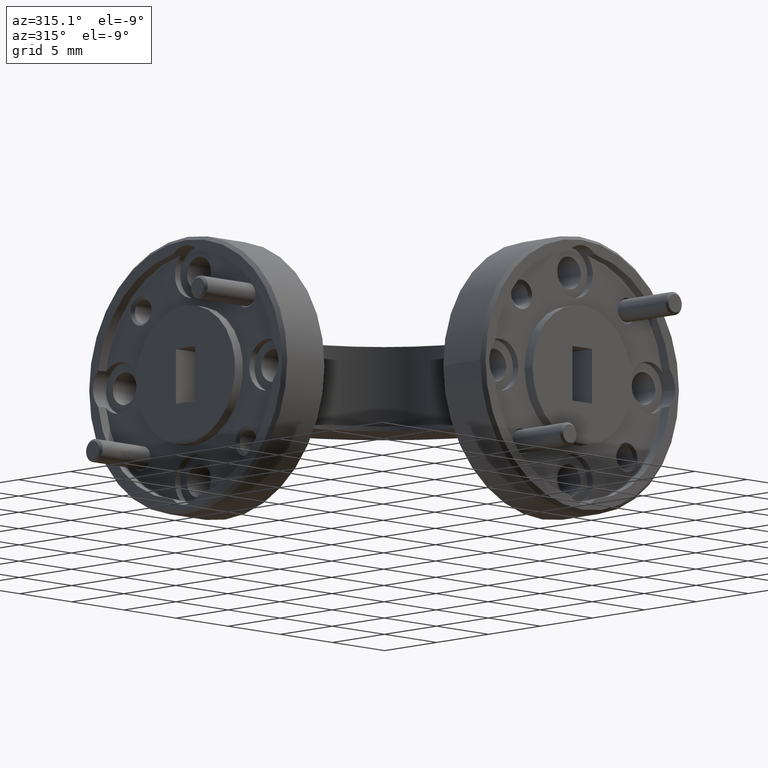
[diagram: clean part render]
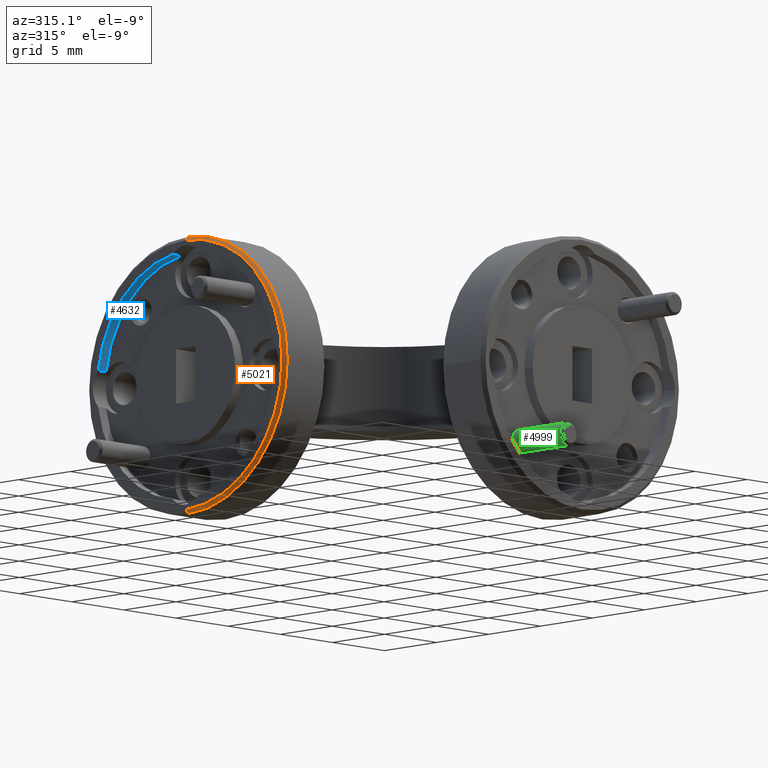
[diagram: same view with three faces highlighted in distinct colors, each labeled with its STEP entity id]
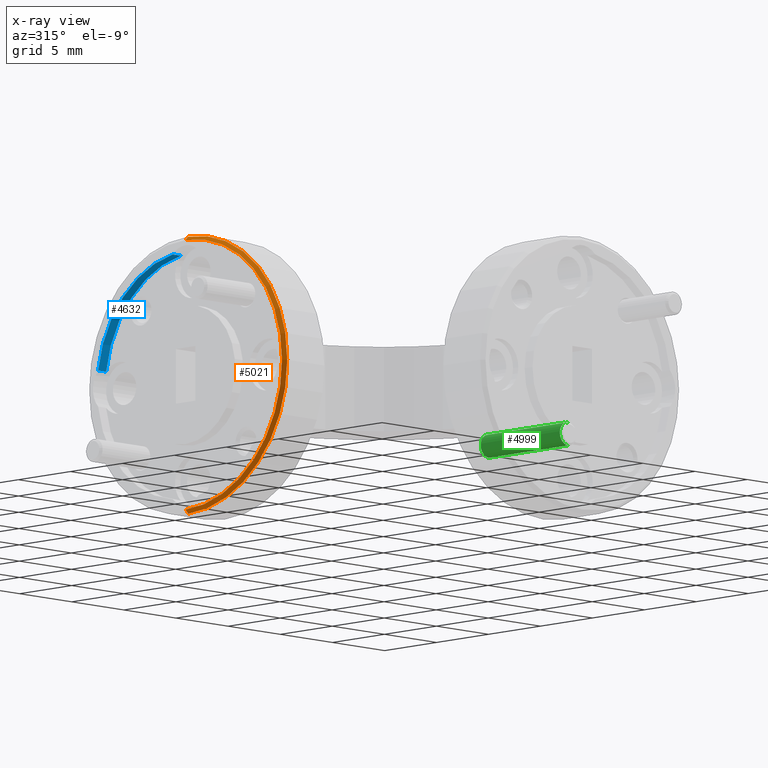
[diagram: x-ray of the same camera — body ghosted, the three highlighted faces saturated]
A machine part, auxiliary view with three faces highlighted in distinct colors.
The next image is the same camera in x-ray (body ghosted, the three faces saturated) — at least one of them is partly hidden behind the body in this view.
Their STEP definitions:

[orange] entity #5021 — the highlighted conical surface has half-angle 45 deg.
#23 = CARTESIAN_POINT ( 'NONE',  ( -2.099202687138052248, 0.6170554953585049018, 0.5190634001413547693 ) ) ;
#52 = CIRCLE ( 'NONE', #6603, 0.3749999999999999445 ) ;
#118 = VERTEX_POINT ( 'NONE', #4708 ) ;
#122 = ORIENTED_EDGE ( 'NONE', *, *, #4592, .F. ) ;
#185 = CARTESIAN_POINT ( 'NONE',  ( -2.089202687138052461, 0.6170554953585049018, 0.1440634001413546861 ) ) ;
#360 = CARTESIAN_POINT ( 'NONE',  ( -2.099202687138052248, 0.6170554953585049018, 0.5190634001413547693 ) ) ;
#460 = EDGE_CURVE ( 'NONE', #4815, #6253, #52, .T. ) ;
#918 = EDGE_CURVE ( 'NONE', #118, #1488, #3186, .T. ) ;
#989 = CONICAL_SURFACE ( 'NONE', #6067, 0.3650000000000003242, 0.7853981633974346233 ) ;
#1004 = AXIS2_PLACEMENT_3D ( 'NONE', #360, #5210, #6403 ) ;
#1378 = LINE ( 'NONE', #2137, #3335 ) ;
#1408 = CARTESIAN_POINT ( 'NONE',  ( -2.099202687138052248, 0.6170554953585049018, 0.1540634001413543896 ) ) ;
#1488 = VERTEX_POINT ( 'NONE', #4534 ) ;
#1864 = ORIENTED_EDGE ( 'NONE', *, *, #4576, .T. ) ;
#2137 = CARTESIAN_POINT ( 'NONE',  ( -2.099202687138052248, 0.6170554953585049018, 0.8840634001413550935 ) ) ;
#2705 = VECTOR ( 'NONE', #7437, 39.37007874015748854 ) ;
#2936 = DIRECTION ( 'NONE',  ( 0.000000000000000000, 0.000000000000000000, -1.000000000000000000 ) ) ;
#3186 = CIRCLE ( 'NONE', #1004, 0.3650000000000003242 ) ;
#3335 = VECTOR ( 'NONE', #3813, 39.37007874015748854 ) ;
#3813 = DIRECTION ( 'NONE',  ( 0.7071067811865571207, 8.659560562354814529E-17, 0.7071067811865378028 ) ) ;
#4298 = DIRECTION ( 'NONE',  ( 1.000000000000000000, 0.000000000000000000, 0.000000000000000000 ) ) ;
#4490 = LINE ( 'NONE', #1408, #2705 ) ;
#4534 = CARTESIAN_POINT ( 'NONE',  ( -2.099202687138052248, 0.6170554953585049018, 0.8840634001413550935 ) ) ;
#4543 = EDGE_LOOP ( 'NONE', ( #122, #5577, #1864, #6618 ) ) ;
#4576 = EDGE_CURVE ( 'NONE', #118, #6253, #4490, .T. ) ;
#4592 = EDGE_CURVE ( 'NONE', #1488, #4815, #1378, .T. ) ;
#4708 = CARTESIAN_POINT ( 'NONE',  ( -2.099202687138052248, 0.6170554953585049018, 0.1540634001413543896 ) ) ;
#4815 = VERTEX_POINT ( 'NONE', #5511 ) ;
#5021 = ADVANCED_FACE ( 'NONE', ( #7730 ), #989, .T. ) ;
#5210 = DIRECTION ( 'NONE',  ( -1.000000000000000000, 0.000000000000000000, 0.000000000000000000 ) ) ;
#5476 = DIRECTION ( 'NONE',  ( 0.000000000000000000, 0.000000000000000000, 1.000000000000000000 ) ) ;
#5511 = CARTESIAN_POINT ( 'NONE',  ( -2.089202687138052461, 0.6170554953585049018, 0.8940634001413546583 ) ) ;
#5577 = ORIENTED_EDGE ( 'NONE', *, *, #918, .F. ) ;
#6060 = CARTESIAN_POINT ( 'NONE',  ( -2.089202687138052461, 0.6170554953585049018, 0.5190634001413547693 ) ) ;
#6067 = AXIS2_PLACEMENT_3D ( 'NONE', #23, #7165, #2936 ) ;
#6253 = VERTEX_POINT ( 'NONE', #185 ) ;
#6403 = DIRECTION ( 'NONE',  ( 0.000000000000000000, 0.000000000000000000, 1.000000000000000000 ) ) ;
#6603 = AXIS2_PLACEMENT_3D ( 'NONE', #6060, #4298, #5476 ) ;
#6618 = ORIENTED_EDGE ( 'NONE', *, *, #460, .F. ) ;
#7165 = DIRECTION ( 'NONE',  ( 1.000000000000000000, 0.000000000000000000, 0.000000000000000000 ) ) ;
#7437 = DIRECTION ( 'NONE',  ( 0.7071067811865571207, 0.000000000000000000, -0.7071067811865378028 ) ) ;
#7730 = FACE_OUTER_BOUND ( 'NONE', #4543, .T. ) ;

[blue] entity #4632 — the highlighted cylindrical surface (partial cylindrical patch) has radius 8.509 mm, axis along (1, -0, -0).
#10 = EDGE_LOOP ( 'NONE', ( #1213, #853, #1209, #4876 ) ) ;
#25 = EDGE_CURVE ( 'NONE', #6326, #3569, #4470, .T. ) ;
#516 = FACE_OUTER_BOUND ( 'NONE', #10, .T. ) ;
#560 = VECTOR ( 'NONE', #7526, 39.37007874015748143 ) ;
#648 = CARTESIAN_POINT ( 'NONE',  ( -2.069202687138052443, 0.6170554953585049018, 0.5190634001413547693 ) ) ;
#853 = ORIENTED_EDGE ( 'NONE', *, *, #5326, .T. ) ;
#1209 = ORIENTED_EDGE ( 'NONE', *, *, #25, .F. ) ;
#1213 = ORIENTED_EDGE ( 'NONE', *, *, #7829, .F. ) ;
#1672 = CARTESIAN_POINT ( 'NONE',  ( -2.069202687138052443, 0.6658660410940323571, 0.8504884001413547390 ) ) ;
#1914 = DIRECTION ( 'NONE',  ( 1.000000000000000000, -0.000000000000000000, -0.000000000000000000 ) ) ;
#1916 = VERTEX_POINT ( 'NONE', #1672 ) ;
#2225 = AXIS2_PLACEMENT_3D ( 'NONE', #648, #1914, #3094 ) ;
#2353 = CARTESIAN_POINT ( 'NONE',  ( -2.099202687138052248, 0.6170554953585049018, 0.5190634001413547693 ) ) ;
#2669 = CARTESIAN_POINT ( 'NONE',  ( -2.099202687138052248, 0.9484804953585048715, 0.5678739458768820025 ) ) ;
#2678 = CARTESIAN_POINT ( 'NONE',  ( -2.069202687138052443, 0.9484804953585048715, 0.5678739458768822246 ) ) ;
#2864 = DIRECTION ( 'NONE',  ( 0.000000000000000000, 0.000000000000000000, -1.000000000000000000 ) ) ;
#2910 = VERTEX_POINT ( 'NONE', #6401 ) ;
#2955 = DIRECTION ( 'NONE',  ( 1.000000000000000000, -0.000000000000000000, -0.000000000000000000 ) ) ;
#3094 = DIRECTION ( 'NONE',  ( 0.000000000000000000, -8.154770130341080731E-16, 1.000000000000000000 ) ) ;
#3294 = DIRECTION ( 'NONE',  ( 1.000000000000000000, 0.000000000000000000, 0.000000000000000000 ) ) ;
#3420 = AXIS2_PLACEMENT_3D ( 'NONE', #2353, #4653, #5908 ) ;
#3569 = VERTEX_POINT ( 'NONE', #2669 ) ;
#3869 = CARTESIAN_POINT ( 'NONE',  ( -2.074202687138052337, 0.9484804953585047604, 0.5678739458768821136 ) ) ;
#3961 = CARTESIAN_POINT ( 'NONE',  ( -2.074202687138052337, 0.6658660410940322461, 0.8504884001413546279 ) ) ;
#4470 = LINE ( 'NONE', #3869, #560 ) ;
#4478 = AXIS2_PLACEMENT_3D ( 'NONE', #5864, #2955, #2864 ) ;
#4632 = ADVANCED_FACE ( 'NONE', ( #516 ), #4779, .F. ) ;
#4653 = DIRECTION ( 'NONE',  ( -1.000000000000000000, 0.000000000000000000, 0.000000000000000000 ) ) ;
#4779 = CYLINDRICAL_SURFACE ( 'NONE', #4478, 0.3350000000000000200 ) ;
#4876 = ORIENTED_EDGE ( 'NONE', *, *, #6208, .T. ) ;
#5326 = EDGE_CURVE ( 'NONE', #2910, #3569, #7176, .T. ) ;
#5864 = CARTESIAN_POINT ( 'NONE',  ( -2.099202687138052248, 0.6170554953585049018, 0.5190634001413547693 ) ) ;
#5908 = DIRECTION ( 'NONE',  ( 0.000000000000000000, 0.000000000000000000, 1.000000000000000000 ) ) ;
#5936 = VECTOR ( 'NONE', #3294, 39.37007874015748143 ) ;
#6208 = EDGE_CURVE ( 'NONE', #6326, #1916, #6497, .T. ) ;
#6278 = LINE ( 'NONE', #3961, #5936 ) ;
#6326 = VERTEX_POINT ( 'NONE', #2678 ) ;
#6401 = CARTESIAN_POINT ( 'NONE',  ( -2.099202687138052248, 0.6658660410940321350, 0.8504884001413547390 ) ) ;
#6497 = CIRCLE ( 'NONE', #2225, 0.3350000000000001310 ) ;
#7176 = CIRCLE ( 'NONE', #3420, 0.3350000000000001310 ) ;
#7526 = DIRECTION ( 'NONE',  ( -1.000000000000000000, -0.000000000000000000, -0.000000000000000000 ) ) ;
#7829 = EDGE_CURVE ( 'NONE', #2910, #1916, #6278, .T. ) ;

[green] entity #4999 — the highlighted cylindrical surface (edge-blend (fillet) strip) has radius 0.7938 mm, axis along (0, 1, 0).
#379 = CYLINDRICAL_SURFACE ( 'NONE', #4427, 0.03125000000000000694 ) ;
#631 = CARTESIAN_POINT ( 'NONE',  ( -1.548076469346764794, -0.2854445046414947340, 0.3514396179326377267 ) ) ;
#638 = DIRECTION ( 'NONE',  ( 0.000000000000000000, 0.000000000000000000, -1.000000000000000000 ) ) ;
#1493 = LINE ( 'NONE', #2711, #5872 ) ;
#1816 = DIRECTION ( 'NONE',  ( 1.260160593766875226E-59, 1.000000000000000000, 3.549874073494544717E-30 ) ) ;
#1827 = DIRECTION ( 'NONE',  ( 1.260160593766875226E-59, 1.000000000000000000, 3.549874073494544717E-30 ) ) ;
#1832 = ORIENTED_EDGE ( 'NONE', *, *, #6871, .F. ) ;
#1930 = LINE ( 'NONE', #631, #5333 ) ;
#2334 = CARTESIAN_POINT ( 'NONE',  ( -1.548076469346764794, -0.2854445046414947340, 0.3201896179326377823 ) ) ;
#2446 = DIRECTION ( 'NONE',  ( 1.260160593766875226E-59, 1.000000000000000000, 3.549874073494544717E-30 ) ) ;
#2540 = ORIENTED_EDGE ( 'NONE', *, *, #5426, .T. ) ;
#2711 = CARTESIAN_POINT ( 'NONE',  ( -1.548076469346764794, -0.2854445046414947340, 0.2889396179326377267 ) ) ;
#3121 = AXIS2_PLACEMENT_3D ( 'NONE', #7228, #1827, #638 ) ;
#3288 = CARTESIAN_POINT ( 'NONE',  ( -1.548076469346764794, 0.02080549535850529860, 0.3514396179326377267 ) ) ;
#3876 = VERTEX_POINT ( 'NONE', #3288 ) ;
#4215 = ORIENTED_EDGE ( 'NONE', *, *, #6249, .T. ) ;
#4273 = AXIS2_PLACEMENT_3D ( 'NONE', #6770, #5613, #5499 ) ;
#4290 = DIRECTION ( 'NONE',  ( 0.000000000000000000, 0.000000000000000000, -1.000000000000000000 ) ) ;
#4427 = AXIS2_PLACEMENT_3D ( 'NONE', #2334, #2446, #4290 ) ;
#4598 = VERTEX_POINT ( 'NONE', #6948 ) ;
#4617 = DIRECTION ( 'NONE',  ( 1.260160593766875226E-59, 1.000000000000000000, 3.549874073494544717E-30 ) ) ;
#4973 = EDGE_LOOP ( 'NONE', ( #6836, #2540, #4215, #1832 ) ) ;
#4999 = ADVANCED_FACE ( 'NONE', ( #5811 ), #379, .T. ) ;
#5258 = CIRCLE ( 'NONE', #3121, 0.03125000000000000694 ) ;
#5333 = VECTOR ( 'NONE', #1816, 39.37007874015748143 ) ;
#5426 = EDGE_CURVE ( 'NONE', #4598, #3876, #1930, .T. ) ;
#5499 = DIRECTION ( 'NONE',  ( 0.000000000000000000, 0.000000000000000000, -1.000000000000000000 ) ) ;
#5613 = DIRECTION ( 'NONE',  ( -1.260160593766875226E-59, -1.000000000000000000, -3.549874073494544717E-30 ) ) ;
#5811 = FACE_OUTER_BOUND ( 'NONE', #4973, .T. ) ;
#5872 = VECTOR ( 'NONE', #4617, 39.37007874015748143 ) ;
#5881 = EDGE_CURVE ( 'NONE', #7318, #4598, #5258, .T. ) ;
#6167 = VERTEX_POINT ( 'NONE', #7405 ) ;
#6249 = EDGE_CURVE ( 'NONE', #3876, #6167, #6749, .T. ) ;
#6749 = CIRCLE ( 'NONE', #4273, 0.03125000000000000694 ) ;
#6770 = CARTESIAN_POINT ( 'NONE',  ( -1.548076469346764794, 0.02080549535850529860, 0.3201896179326377823 ) ) ;
#6836 = ORIENTED_EDGE ( 'NONE', *, *, #5881, .T. ) ;
#6871 = EDGE_CURVE ( 'NONE', #7318, #6167, #1493, .T. ) ;
#6948 = CARTESIAN_POINT ( 'NONE',  ( -1.548076469346764794, -0.2791945046414947007, 0.3514396179326377267 ) ) ;
#7228 = CARTESIAN_POINT ( 'NONE',  ( -1.548076469346764794, -0.2791945046414947007, 0.3201896179326377823 ) ) ;
#7318 = VERTEX_POINT ( 'NONE', #7365 ) ;
#7365 = CARTESIAN_POINT ( 'NONE',  ( -1.548076469346764794, -0.2791945046414947007, 0.2889396179326377267 ) ) ;
#7405 = CARTESIAN_POINT ( 'NONE',  ( -1.548076469346764794, 0.02080549535850529860, 0.2889396179326377267 ) ) ;